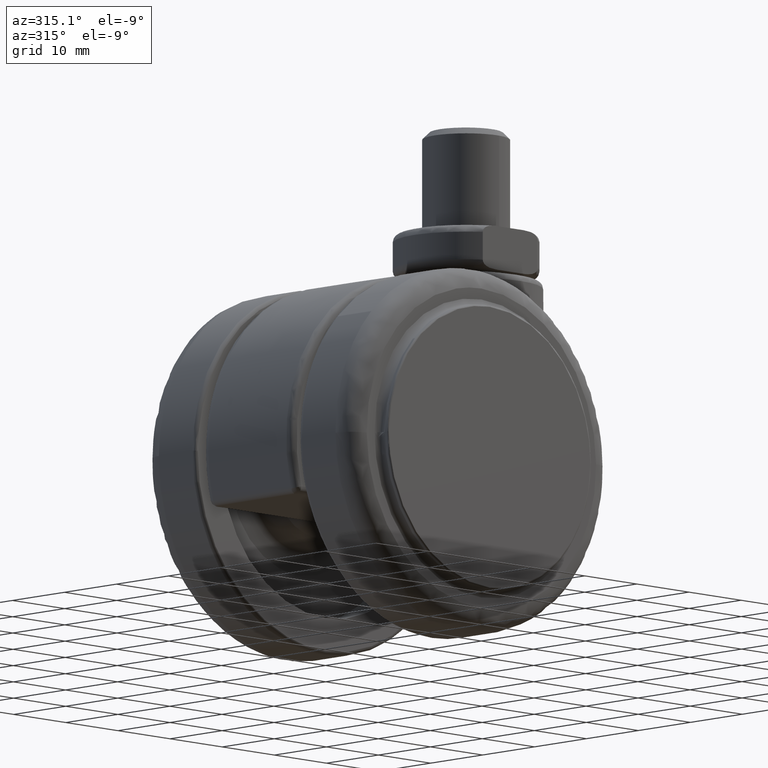
[diagram: clean part render]
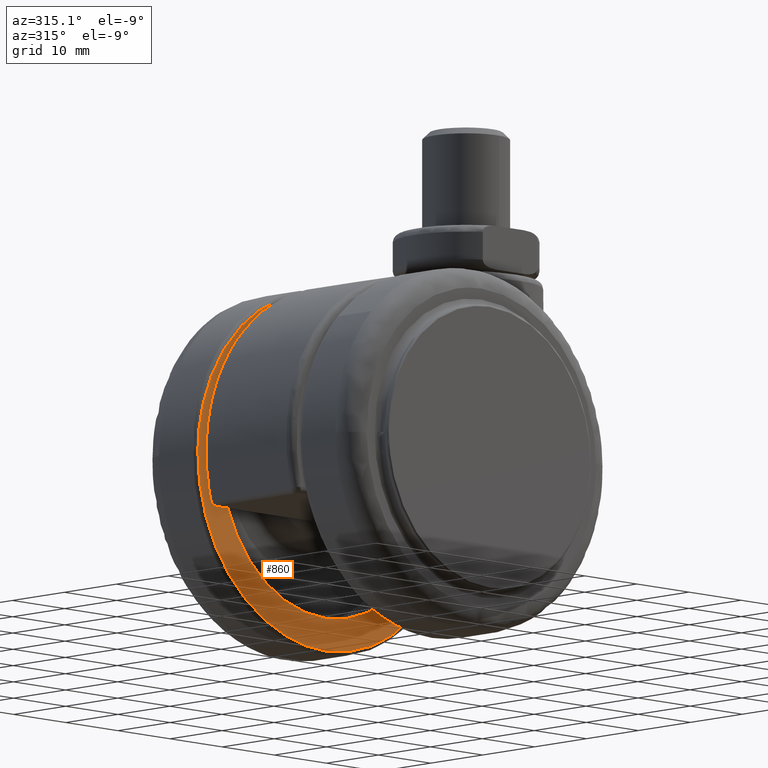
[diagram: same view with one face highlighted and labeled with its STEP entity id]
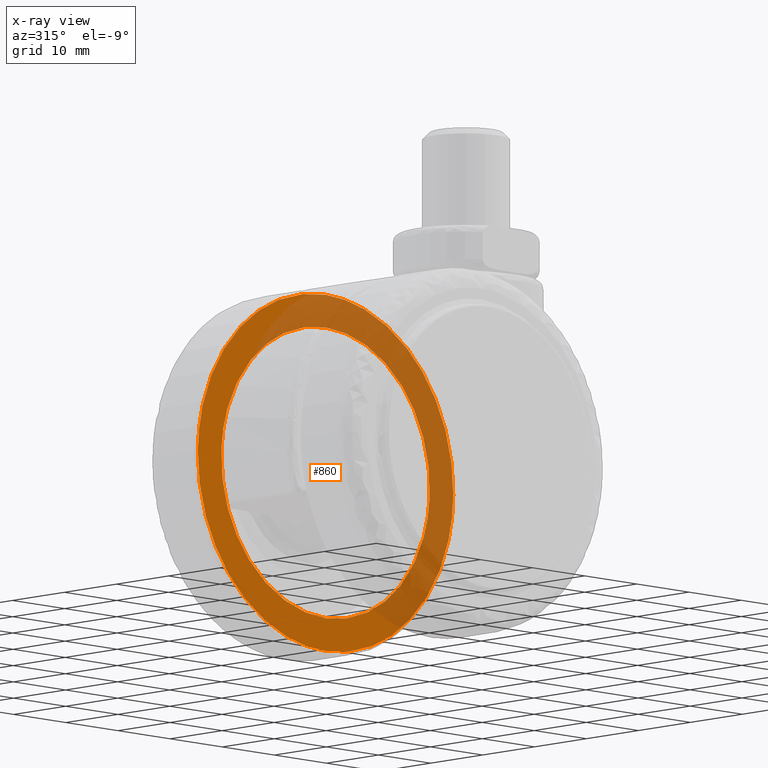
[diagram: x-ray of the same camera — body ghosted, the highlighted face saturated]
A machine part, auxiliary view. The second image highlights one B-rep face of the part: STEP entity #860.
The next image is the same camera in x-ray: the body ghosted, the highlighted face saturated — about 48% of this face is hidden behind the body in this view.
In plain terms, the highlighted face is a freeform B-spline surface patch.
Its self-contained STEP definition (entity closure, byte-faithful):
#680=CARTESIAN_POINT('',(-19.962697501510871,10.0,1.220945724649967));
#681=VERTEX_POINT('',#680);
#687=CARTESIAN_POINT('',(1.224606E-015,10.0,-20.0));
#688=VERTEX_POINT('',#687);
#689=CARTESIAN_POINT('',(-19.962697501510863,10.000000000000002,1.220945724649968));
#690=CARTESIAN_POINT('',(-19.999999999984482,10.000000000000004,0.611042697807070));
#691=CARTESIAN_POINT('',(-19.999999999984730,10.0,-9.353196E-013));
#692=CARTESIAN_POINT('',(-19.999999999992600,10.000000000000004,-20.000000000000451));
#693=CARTESIAN_POINT('',(1.224606E-015,10.0,-20.0));
#701=(BOUNDED_CURVE()B_SPLINE_CURVE(2,(#689,#690,#691,#692,#693),.UNSPECIFIED.,.F.,.U.)B_SPLINE_CURVE_WITH_KNOTS((3,2,3),(0.239333178899412,0.250000000000000,0.500000000000000),.UNSPECIFIED.)CURVE()GEOMETRIC_REPRESENTATION_ITEM()RATIONAL_B_SPLINE_CURVE((0.976072506011785,0.987503041733366,1.0,0.707106781186548,1.0))REPRESENTATION_ITEM(''));
#702=EDGE_CURVE('',#681,#688,#701,.T.);
#704=CARTESIAN_POINT('',(19.962697501510871,9.999999999999998,-1.220945724649964));
#705=VERTEX_POINT('',#704);
#706=CARTESIAN_POINT('',(1.224606E-015,10.0,-20.0));
#707=CARTESIAN_POINT('',(18.814145006109651,9.999999999999996,-19.999999999999520));
#708=CARTESIAN_POINT('',(19.962697501510871,10.000000000000002,-1.220945724649964));
#716=(BOUNDED_CURVE()B_SPLINE_CURVE(2,(#706,#707,#708),.UNSPECIFIED.,.F.,.U.)B_SPLINE_CURVE_WITH_KNOTS((3,3),(0.500000000000000,0.739333178899412),.UNSPECIFIED.)CURVE()GEOMETRIC_REPRESENTATION_ITEM()RATIONAL_B_SPLINE_CURVE((1.0,0.719603739453182,0.976072506011785))REPRESENTATION_ITEM(''));
#717=EDGE_CURVE('',#688,#705,#716,.T.);
#749=CARTESIAN_POINT('',(1.224606E-015,10.0,20.0));
#750=VERTEX_POINT('',#749);
#751=CARTESIAN_POINT('',(19.962697501510871,10.000000000000002,-1.220945724649964));
#752=CARTESIAN_POINT('',(19.999999999984482,9.999999999999996,-0.611042697807071));
#753=CARTESIAN_POINT('',(19.999999999984720,9.999999999999996,9.295022E-013));
#754=CARTESIAN_POINT('',(19.999999999992600,9.999999999999996,20.000000000000451));
#755=CARTESIAN_POINT('',(1.224606E-015,10.0,20.0));
#763=(BOUNDED_CURVE()B_SPLINE_CURVE(2,(#751,#752,#753,#754,#755),.UNSPECIFIED.,.F.,.U.)B_SPLINE_CURVE_WITH_KNOTS((3,2,3),(0.739333178899412,0.750000000000000,1.0),.UNSPECIFIED.)CURVE()GEOMETRIC_REPRESENTATION_ITEM()RATIONAL_B_SPLINE_CURVE((0.976072506011785,0.987503041733366,1.0,0.707106781186548,1.0))REPRESENTATION_ITEM(''));
#764=EDGE_CURVE('',#705,#750,#763,.T.);
#766=CARTESIAN_POINT('',(1.224606E-015,10.0,20.0));
#767=CARTESIAN_POINT('',(-18.814145006109648,10.000000000000002,19.999999999999517));
#768=CARTESIAN_POINT('',(-19.962697501510863,10.000000000000002,1.220945724649968));
#776=(BOUNDED_CURVE()B_SPLINE_CURVE(2,(#766,#767,#768),.UNSPECIFIED.,.F.,.U.)B_SPLINE_CURVE_WITH_KNOTS((3,3),(0.0,0.239333178899412),.UNSPECIFIED.)CURVE()GEOMETRIC_REPRESENTATION_ITEM()RATIONAL_B_SPLINE_CURVE((1.0,0.719603739453182,0.976072506011785))REPRESENTATION_ITEM(''));
#777=EDGE_CURVE('',#750,#681,#776,.T.);
#783=CARTESIAN_POINT('',(26.945422243563439,9.999999999999996,26.947549905028492));
#784=CARTESIAN_POINT('',(26.945422243563439,9.999999999999996,-26.947551219310910));
#785=CARTESIAN_POINT('',(-26.945423557742082,10.0,26.947549905028492));
#786=CARTESIAN_POINT('',(-26.945423557742082,10.0,-26.947551219310910));
#787=B_SPLINE_SURFACE_WITH_KNOTS('',1,1,((#783,#785),(#784,#786)),.UNSPECIFIED.,.F.,.F.,.U.,(2,2),(2,2),(0.0,53.895101124339398),(0.0,53.890845801305517),.UNSPECIFIED.);
#788=CARTESIAN_POINT('',(1.224606E-015,10.0,24.500000000000000));
#789=VERTEX_POINT('',#788);
#790=CARTESIAN_POINT('',(-24.498065586441900,10.000000000000011,0.307867977206816));
#791=VERTEX_POINT('',#790);
#792=CARTESIAN_POINT('',(1.224606E-015,10.0,24.500000000000000));
#793=CARTESIAN_POINT('',(-24.194042284432459,10.000000000000005,24.500000000021664));
#794=CARTESIAN_POINT('',(-24.498065586441896,10.000000000000005,0.307867977206816));
#802=(BOUNDED_CURVE()B_SPLINE_CURVE(2,(#792,#793,#794),.UNSPECIFIED.,.F.,.U.)B_SPLINE_CURVE_WITH_KNOTS((3,3),(0.0,0.247784295921575),.UNSPECIFIED.)CURVE()GEOMETRIC_REPRESENTATION_ITEM()RATIONAL_B_SPLINE_CURVE((1.0,0.709702639984419,0.994854295643660))REPRESENTATION_ITEM(''));
#803=EDGE_CURVE('',#789,#791,#802,.T.);
#804=ORIENTED_EDGE('',*,*,#803,.T.);
#805=CARTESIAN_POINT('',(1.224606E-015,10.0,-24.500000000000000));
#806=VERTEX_POINT('',#805);
#807=CARTESIAN_POINT('',(-24.498065586441896,10.000000000000005,0.307867977206816));
#808=CARTESIAN_POINT('',(-24.500000003437975,10.000000000000007,0.153940065855177));
#809=CARTESIAN_POINT('',(-24.500000003427139,10.000000000000011,4.307253E-011));
#810=CARTESIAN_POINT('',(-24.500000001702794,10.000000000000005,-24.499999999978602));
#811=CARTESIAN_POINT('',(1.224606E-015,10.0,-24.500000000000000));
#819=(BOUNDED_CURVE()B_SPLINE_CURVE(2,(#807,#808,#809,#810,#811),.UNSPECIFIED.,.F.,.U.)B_SPLINE_CURVE_WITH_KNOTS((3,2,3),(0.247784295921575,0.250000000000000,0.500000000000000),.UNSPECIFIED.)CURVE()GEOMETRIC_REPRESENTATION_ITEM()RATIONAL_B_SPLINE_CURVE((0.994854295643660,0.997404141202128,1.0,0.707106781186547,1.0))REPRESENTATION_ITEM(''));
#820=EDGE_CURVE('',#791,#806,#819,.T.);
#821=ORIENTED_EDGE('',*,*,#820,.T.);
#822=CARTESIAN_POINT('',(24.498065586441900,9.999999999999998,-0.307867977206817));
#823=VERTEX_POINT('',#822);
#824=CARTESIAN_POINT('',(1.224606E-015,10.0,-24.500000000000000));
#825=CARTESIAN_POINT('',(24.194042284432474,9.999999999999998,-24.500000000021664));
#826=CARTESIAN_POINT('',(24.498065586441907,9.999999999999998,-0.307867977206817));
#834=(BOUNDED_CURVE()B_SPLINE_CURVE(2,(#824,#825,#826),.UNSPECIFIED.,.F.,.U.)B_SPLINE_CURVE_WITH_KNOTS((3,3),(0.500000000000000,0.747784295921575),.UNSPECIFIED.)CURVE()GEOMETRIC_REPRESENTATION_ITEM()RATIONAL_B_SPLINE_CURVE((1.0,0.709702639984419,0.994854295643660))REPRESENTATION_ITEM(''));
#835=EDGE_CURVE('',#806,#823,#834,.T.);
#836=ORIENTED_EDGE('',*,*,#835,.T.);
#837=CARTESIAN_POINT('',(24.498065586441907,9.999999999999998,-0.307867977206817));
#838=CARTESIAN_POINT('',(24.500000003437975,10.0,-0.153940065855177));
#839=CARTESIAN_POINT('',(24.500000003427150,10.0,-4.307264E-011));
#840=CARTESIAN_POINT('',(24.500000001702809,9.999999999999998,24.499999999978584));
#841=CARTESIAN_POINT('',(1.224606E-015,10.0,24.500000000000000));
#849=(BOUNDED_CURVE()B_SPLINE_CURVE(2,(#837,#838,#839,#840,#841),.UNSPECIFIED.,.F.,.U.)B_SPLINE_CURVE_WITH_KNOTS((3,2,3),(0.747784295921575,0.750000000000000,1.0),.UNSPECIFIED.)CURVE()GEOMETRIC_REPRESENTATION_ITEM()RATIONAL_B_SPLINE_CURVE((0.994854295643660,0.997404141202128,1.0,0.707106781186547,1.0))REPRESENTATION_ITEM(''));
#850=EDGE_CURVE('',#823,#789,#849,.T.);
#851=ORIENTED_EDGE('',*,*,#850,.T.);
#852=EDGE_LOOP('',(#804,#821,#836,#851));
#853=FACE_OUTER_BOUND('',#852,.T.);
#854=ORIENTED_EDGE('',*,*,#717,.F.);
#855=ORIENTED_EDGE('',*,*,#702,.F.);
#856=ORIENTED_EDGE('',*,*,#777,.F.);
#857=ORIENTED_EDGE('',*,*,#764,.F.);
#858=EDGE_LOOP('',(#854,#855,#856,#857));
#859=FACE_BOUND('',#858,.T.);
#860=ADVANCED_FACE('',(#853,#859),#787,.F.);